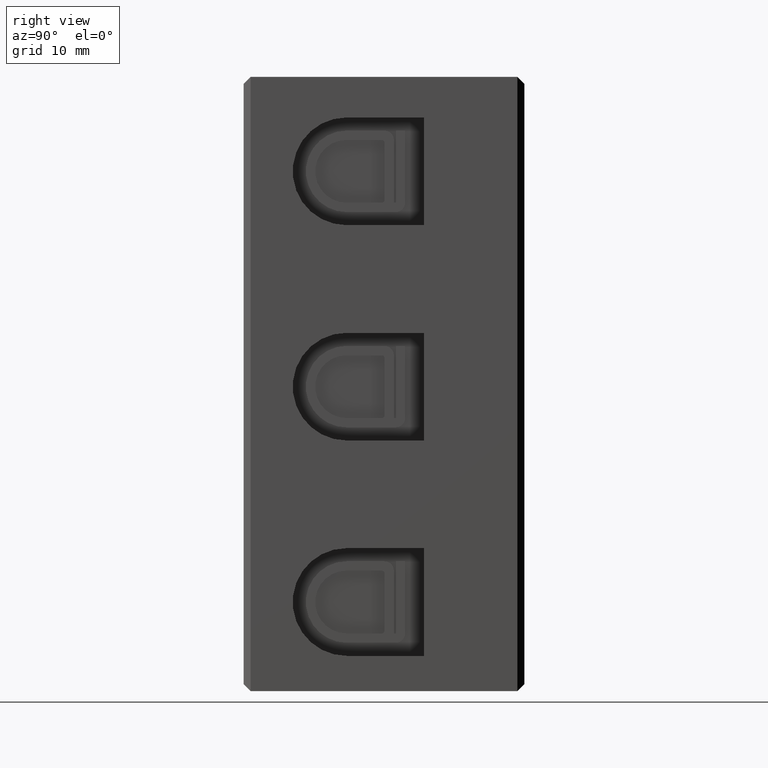
[diagram: clean part render]
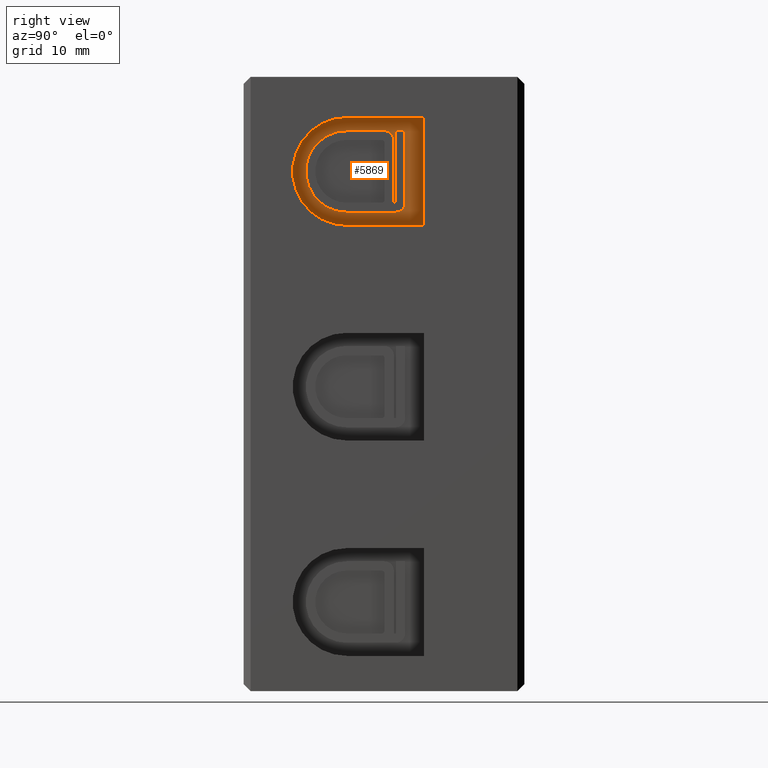
[diagram: same view with one face highlighted and labeled with its STEP entity id]
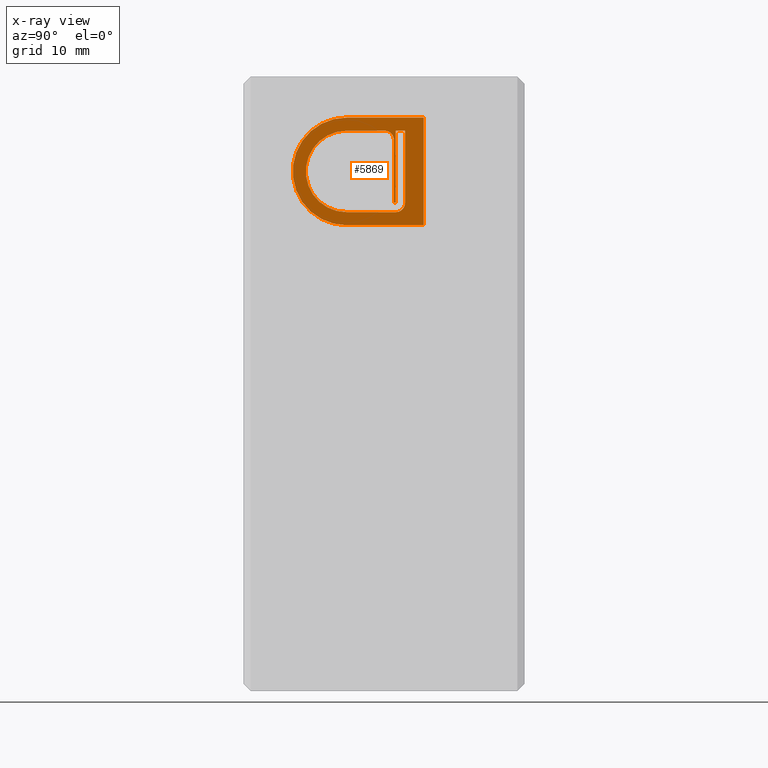
[diagram: x-ray of the same camera — body ghosted, the highlighted face saturated]
A machine part, right view. The second image highlights one B-rep face of the part: STEP entity #5869.
The next image is the same camera in x-ray: the body ghosted, the highlighted face saturated — about 0% of this face is hidden behind the body in this view.
In plain terms, the highlighted planar face has unit normal (1, 0, -0).
Its self-contained STEP definition (entity closure, byte-faithful):
#1083 = DIRECTION ( 'NONE',  ( -2.346586625918115700E-016, 1.000000000000000000, 0.0000000000000000000 ) ) ;
#1087 = FACE_OUTER_BOUND ( 'NONE', #8395, .T. ) ;
#1088 = CARTESIAN_POINT ( 'NONE',  ( 24.60000000000017200, 19.24999999999999600, -24.23300584043050400 ) ) ;
#1100 = DIRECTION ( 'NONE',  ( 1.000000000000000000, 2.346586625918115700E-016, -0.0000000000000000000 ) ) ;
#1105 = PLANE ( 'NONE',  #2633 ) ;
#1118 = FACE_BOUND ( 'NONE', #8436, .T. ) ;
#2633 = AXIS2_PLACEMENT_3D ( 'NONE', #1088, #1100, #1083 ) ;
#3219 = ORIENTED_EDGE ( 'NONE', *, *, #7453, .F. ) ;
#3226 = ORIENTED_EDGE ( 'NONE', *, *, #7462, .F. ) ;
#3230 = ORIENTED_EDGE ( 'NONE', *, *, #7450, .T. ) ;
#3231 = ORIENTED_EDGE ( 'NONE', *, *, #7490, .T. ) ;
#3233 = ORIENTED_EDGE ( 'NONE', *, *, #7470, .F. ) ;
#3234 = ORIENTED_EDGE ( 'NONE', *, *, #7483, .T. ) ;
#3251 = ORIENTED_EDGE ( 'NONE', *, *, #7381, .T. ) ;
#3255 = ORIENTED_EDGE ( 'NONE', *, *, #7435, .T. ) ;
#3274 = ORIENTED_EDGE ( 'NONE', *, *, #6215, .T. ) ;
#3283 = ORIENTED_EDGE ( 'NONE', *, *, #7449, .T. ) ;
#3289 = ORIENTED_EDGE ( 'NONE', *, *, #7403, .T. ) ;
#3298 = ORIENTED_EDGE ( 'NONE', *, *, #7475, .T. ) ;
#3299 = ORIENTED_EDGE ( 'NONE', *, *, #7466, .T. ) ;
#3318 = ORIENTED_EDGE ( 'NONE', *, *, #7459, .T. ) ;
#3337 = ORIENTED_EDGE ( 'NONE', *, *, #7494, .T. ) ;
#3338 = ORIENTED_EDGE ( 'NONE', *, *, #7431, .T. ) ;
#4516 = VERTEX_POINT ( 'NONE', #8844 ) ;
#4530 = VERTEX_POINT ( 'NONE', #8831 ) ;
#4531 = VERTEX_POINT ( 'NONE', #8853 ) ;
#4533 = VERTEX_POINT ( 'NONE', #8884 ) ;
#4535 = VERTEX_POINT ( 'NONE', #8921 ) ;
#4542 = VERTEX_POINT ( 'NONE', #9017 ) ;
#4557 = VERTEX_POINT ( 'NONE', #8975 ) ;
#4561 = VERTEX_POINT ( 'NONE', #9019 ) ;
#4563 = VERTEX_POINT ( 'NONE', #8949 ) ;
#4565 = VERTEX_POINT ( 'NONE', #9036 ) ;
#4569 = VERTEX_POINT ( 'NONE', #9004 ) ;
#4579 = VERTEX_POINT ( 'NONE', #8986 ) ;
#4589 = VERTEX_POINT ( 'NONE', #8980 ) ;
#4595 = VERTEX_POINT ( 'NONE', #9002 ) ;
#4865 = VERTEX_POINT ( 'NONE', #9509 ) ;
#4890 = VERTEX_POINT ( 'NONE', #9717 ) ;
#5257 = CARTESIAN_POINT ( 'NONE',  ( 24.60000000000017200, 19.24999999999999600, -24.23300584043050400 ) ) ;
#5275 = DIRECTION ( 'NONE',  ( 0.0000000000000000000, 0.0000000000000000000, 1.000000000000000000 ) ) ;
#5294 = LINE ( 'NONE', #5257, #8793 ) ;
#5307 = LINE ( 'NONE', #5333, #8907 ) ;
#5308 = DIRECTION ( 'NONE',  ( 2.346586625918115700E-016, -1.000000000000000000, -1.110223024625156100E-015 ) ) ;
#5333 = CARTESIAN_POINT ( 'NONE',  ( 24.60000000000017200, 17.25000000000000400, 51.15000000000000600 ) ) ;
#5400 = LINE ( 'NONE', #5457, #8939 ) ;
#5441 = DIRECTION ( 'NONE',  ( 1.000000000000000000, -0.0000000000000000000, -1.224646799147353200E-016 ) ) ;
#5443 = DIRECTION ( 'NONE',  ( 0.0000000000000000000, 0.0000000000000000000, 1.000000000000000000 ) ) ;
#5447 = CARTESIAN_POINT ( 'NONE',  ( 24.60000000000017200, 11.00000000000000000, 55.50000000000000000 ) ) ;
#5457 = CARTESIAN_POINT ( 'NONE',  ( 24.60000000000017200, 19.24999999999999600, 61.25000000000000000 ) ) ;
#5458 = DIRECTION ( 'NONE',  ( -0.0000000000000000000, -1.000000000000000000, -0.0000000000000000000 ) ) ;
#5467 = DIRECTION ( 'NONE',  ( -2.346586625918115700E-016, 1.000000000000000000, 1.972178677758758500E-015 ) ) ;
#5468 = LINE ( 'NONE', #5496, #8991 ) ;
#5470 = CARTESIAN_POINT ( 'NONE',  ( 24.60000000000017200, 11.00000000000000400, 59.85000000000000100 ) ) ;
#5476 = LINE ( 'NONE', #5470, #9046 ) ;
#5477 = DIRECTION ( 'NONE',  ( 2.346586625918115700E-016, -1.000000000000000000, -2.873739800352607800E-032 ) ) ;
#5482 = CARTESIAN_POINT ( 'NONE',  ( 24.60000000000016500, 11.00000000000000000, 49.74999999999999300 ) ) ;
#5486 = DIRECTION ( 'NONE',  ( 0.0000000000000000000, 1.000000000000000000, 8.410780489584523600E-016 ) ) ;
#5493 = LINE ( 'NONE', #5482, #9093 ) ;
#5496 = CARTESIAN_POINT ( 'NONE',  ( 24.60000000000017200, 16.25000000000000400, 52.15000000000000600 ) ) ;
#5499 = CARTESIAN_POINT ( 'NONE',  ( 24.60000000000017200, 11.00000000000000000, 55.50000000000000000 ) ) ;
#5501 = DIRECTION ( 'NONE',  ( 0.0000000000000000000, 0.0000000000000000000, 1.000000000000000000 ) ) ;
#5511 = DIRECTION ( 'NONE',  ( 0.0000000000000000000, 1.000000000000000000, 0.0000000000000000000 ) ) ;
#5513 = LINE ( 'NONE', #5520, #9062 ) ;
#5514 = LINE ( 'NONE', #5525, #9037 ) ;
#5515 = CARTESIAN_POINT ( 'NONE',  ( 24.60000000000017200, 15.05000000000000100, 58.85000000000000900 ) ) ;
#5516 = DIRECTION ( 'NONE',  ( -1.000000000000000000, -2.346586625918115700E-016, 0.0000000000000000000 ) ) ;
#5520 = CARTESIAN_POINT ( 'NONE',  ( 24.60000000000017200, 16.25000000000000000, 59.85000000000000900 ) ) ;
#5523 = DIRECTION ( 'NONE',  ( 0.0000000000000000000, 1.000000000000000000, 0.0000000000000000000 ) ) ;
#5525 = CARTESIAN_POINT ( 'NONE',  ( 24.60000000000017200, 16.05000000000000100, 52.15000000000000600 ) ) ;
#5529 = DIRECTION ( 'NONE',  ( -1.000000000000000000, -2.346586625918115700E-016, 0.0000000000000000000 ) ) ;
#5537 = DIRECTION ( 'NONE',  ( 0.0000000000000000000, 1.000000000000000000, 0.0000000000000000000 ) ) ;
#5539 = DIRECTION ( 'NONE',  ( 0.0000000000000000000, 0.0000000000000000000, -1.000000000000000000 ) ) ;
#5543 = CARTESIAN_POINT ( 'NONE',  ( 24.60000000000017200, 16.25000000000000000, 52.15000000000000600 ) ) ;
#5548 = DIRECTION ( 'NONE',  ( -1.000000000000000000, -2.346586625918115700E-016, 0.0000000000000000000 ) ) ;
#5583 = DIRECTION ( 'NONE',  ( 0.0000000000000000000, -0.0000000000000000000, 1.000000000000000000 ) ) ;
#5591 = LINE ( 'NONE', #5617, #9172 ) ;
#5592 = DIRECTION ( 'NONE',  ( 0.0000000000000000000, 0.0000000000000000000, -1.000000000000000000 ) ) ;
#5595 = LINE ( 'NONE', #5606, #9108 ) ;
#5597 = DIRECTION ( 'NONE',  ( 0.0000000000000000000, -0.0000000000000000000, 1.000000000000000000 ) ) ;
#5602 = CARTESIAN_POINT ( 'NONE',  ( 24.60000000000017200, 17.25000000000000000, 59.85000000000000900 ) ) ;
#5606 = CARTESIAN_POINT ( 'NONE',  ( 24.60000000000016500, 19.24999999999999600, 49.74999999999999300 ) ) ;
#5616 = LINE ( 'NONE', #5602, #9022 ) ;
#5617 = CARTESIAN_POINT ( 'NONE',  ( 24.60000000000017200, 19.24999999999999600, 49.74999999999999300 ) ) ;
#5869 = ADVANCED_FACE ( 'NONE', ( #1118, #1087 ), #1105, .T. ) ;
#6215 = EDGE_CURVE ( 'NONE', #4865, #4890, #7290, .T. ) ;
#6481 = DIRECTION ( 'NONE',  ( -2.346586625918115700E-016, 1.000000000000000000, 1.972178677758758500E-015 ) ) ;
#7280 = CARTESIAN_POINT ( 'NONE',  ( 24.60000000000017200, 11.00000000000000400, 59.85000000000000100 ) ) ;
#7290 = LINE ( 'NONE', #7280, #7826 ) ;
#7381 = EDGE_CURVE ( 'NONE', #4531, #4533, #5294, .T. ) ;
#7403 = EDGE_CURVE ( 'NONE', #4535, #4563, #5307, .T. ) ;
#7431 = EDGE_CURVE ( 'NONE', #4561, #4516, #5400, .T. ) ;
#7435 = EDGE_CURVE ( 'NONE', #4516, #4595, #8877, .T. ) ;
#7449 = EDGE_CURVE ( 'NONE', #4569, #4542, #5476, .T. ) ;
#7450 = EDGE_CURVE ( 'NONE', #4595, #4565, #5493, .T. ) ;
#7453 = EDGE_CURVE ( 'NONE', #4579, #4530, #5468, .T. ) ;
#7459 = EDGE_CURVE ( 'NONE', #4563, #4569, #9035, .T. ) ;
#7462 = EDGE_CURVE ( 'NONE', #4530, #4589, #5514, .T. ) ;
#7466 = EDGE_CURVE ( 'NONE', #4542, #4589, #9040, .T. ) ;
#7470 = EDGE_CURVE ( 'NONE', #4865, #4579, #5513, .T. ) ;
#7475 = EDGE_CURVE ( 'NONE', #4557, #4535, #9033, .T. ) ;
#7483 = EDGE_CURVE ( 'NONE', #4890, #4557, #5616, .T. ) ;
#7490 = EDGE_CURVE ( 'NONE', #4533, #4561, #5591, .T. ) ;
#7494 = EDGE_CURVE ( 'NONE', #4565, #4531, #5595, .T. ) ;
#7826 = VECTOR ( 'NONE', #6481, 1000.000000000000000 ) ;
#8395 = EDGE_LOOP ( 'NONE', ( #3338, #3255, #3230, #3337, #3251, #3231 ) ) ;
#8436 = EDGE_LOOP ( 'NONE', ( #3283, #3299, #3226, #3219, #3233, #3274, #3234, #3298, #3289, #3318 ) ) ;
#8793 = VECTOR ( 'NONE', #5275, 1000.000000000000000 ) ;
#8831 = CARTESIAN_POINT ( 'NONE',  ( 24.60000000000017200, 16.05000000000000100, 52.15000000000000600 ) ) ;
#8844 = CARTESIAN_POINT ( 'NONE',  ( 24.60000000000017200, 11.00000000000000000, 61.25000000000000000 ) ) ;
#8853 = CARTESIAN_POINT ( 'NONE',  ( 24.60000000000017200, 19.24999999999999600, 53.79999999999999700 ) ) ;
#8877 = CIRCLE ( 'NONE', #8909, 5.750000000000005300 ) ;
#8884 = CARTESIAN_POINT ( 'NONE',  ( 24.60000000000017200, 19.24999999999999600, 57.80000000000000400 ) ) ;
#8907 = VECTOR ( 'NONE', #5308, 1000.000000000000000 ) ;
#8909 = AXIS2_PLACEMENT_3D ( 'NONE', #5447, #5441, #5443 ) ;
#8921 = CARTESIAN_POINT ( 'NONE',  ( 24.60000000000017200, 16.25000000000000000, 51.15000000000000600 ) ) ;
#8939 = VECTOR ( 'NONE', #5458, 1000.000000000000000 ) ;
#8949 = CARTESIAN_POINT ( 'NONE',  ( 24.60000000000017600, 11.00000000000000000, 51.14999999999999100 ) ) ;
#8975 = CARTESIAN_POINT ( 'NONE',  ( 24.60000000000017200, 17.25000000000000000, 52.15000000000000600 ) ) ;
#8979 = AXIS2_PLACEMENT_3D ( 'NONE', #5499, #5529, #5523 ) ;
#8980 = CARTESIAN_POINT ( 'NONE',  ( 24.60000000000017200, 16.05000000000000100, 58.85000000000000900 ) ) ;
#8986 = CARTESIAN_POINT ( 'NONE',  ( 24.60000000000017200, 16.25000000000000000, 52.15000000000000600 ) ) ;
#8991 = VECTOR ( 'NONE', #5477, 1000.000000000000000 ) ;
#9002 = CARTESIAN_POINT ( 'NONE',  ( 24.60000000000016800, 11.00000000000000400, 49.74999999999999300 ) ) ;
#9004 = CARTESIAN_POINT ( 'NONE',  ( 24.60000000000017200, 11.00000000000000000, 59.85000000000000100 ) ) ;
#9017 = CARTESIAN_POINT ( 'NONE',  ( 24.60000000000017200, 15.04999999999999900, 59.85000000000000900 ) ) ;
#9019 = CARTESIAN_POINT ( 'NONE',  ( 24.60000000000016800, 19.24999999999999600, 61.25000000000000000 ) ) ;
#9022 = VECTOR ( 'NONE', #5592, 1000.000000000000000 ) ;
#9033 = CIRCLE ( 'NONE', #9067, 1.000000000000000900 ) ;
#9035 = CIRCLE ( 'NONE', #8979, 4.349999999999999600 ) ;
#9036 = CARTESIAN_POINT ( 'NONE',  ( 24.60000000000016500, 19.24999999999999600, 49.74999999999999300 ) ) ;
#9037 = VECTOR ( 'NONE', #5501, 1000.000000000000000 ) ;
#9040 = CIRCLE ( 'NONE', #9042, 1.000000000000000900 ) ;
#9042 = AXIS2_PLACEMENT_3D ( 'NONE', #5515, #5516, #5511 ) ;
#9046 = VECTOR ( 'NONE', #5467, 1000.000000000000000 ) ;
#9062 = VECTOR ( 'NONE', #5539, 1000.000000000000000 ) ;
#9067 = AXIS2_PLACEMENT_3D ( 'NONE', #5543, #5548, #5537 ) ;
#9093 = VECTOR ( 'NONE', #5486, 1000.000000000000000 ) ;
#9108 = VECTOR ( 'NONE', #5597, 1000.000000000000000 ) ;
#9172 = VECTOR ( 'NONE', #5583, 1000.000000000000000 ) ;
#9509 = CARTESIAN_POINT ( 'NONE',  ( 24.60000000000017200, 16.25000000000000000, 59.85000000000000900 ) ) ;
#9717 = CARTESIAN_POINT ( 'NONE',  ( 24.60000000000017200, 17.25000000000000000, 59.85000000000001600 ) ) ;